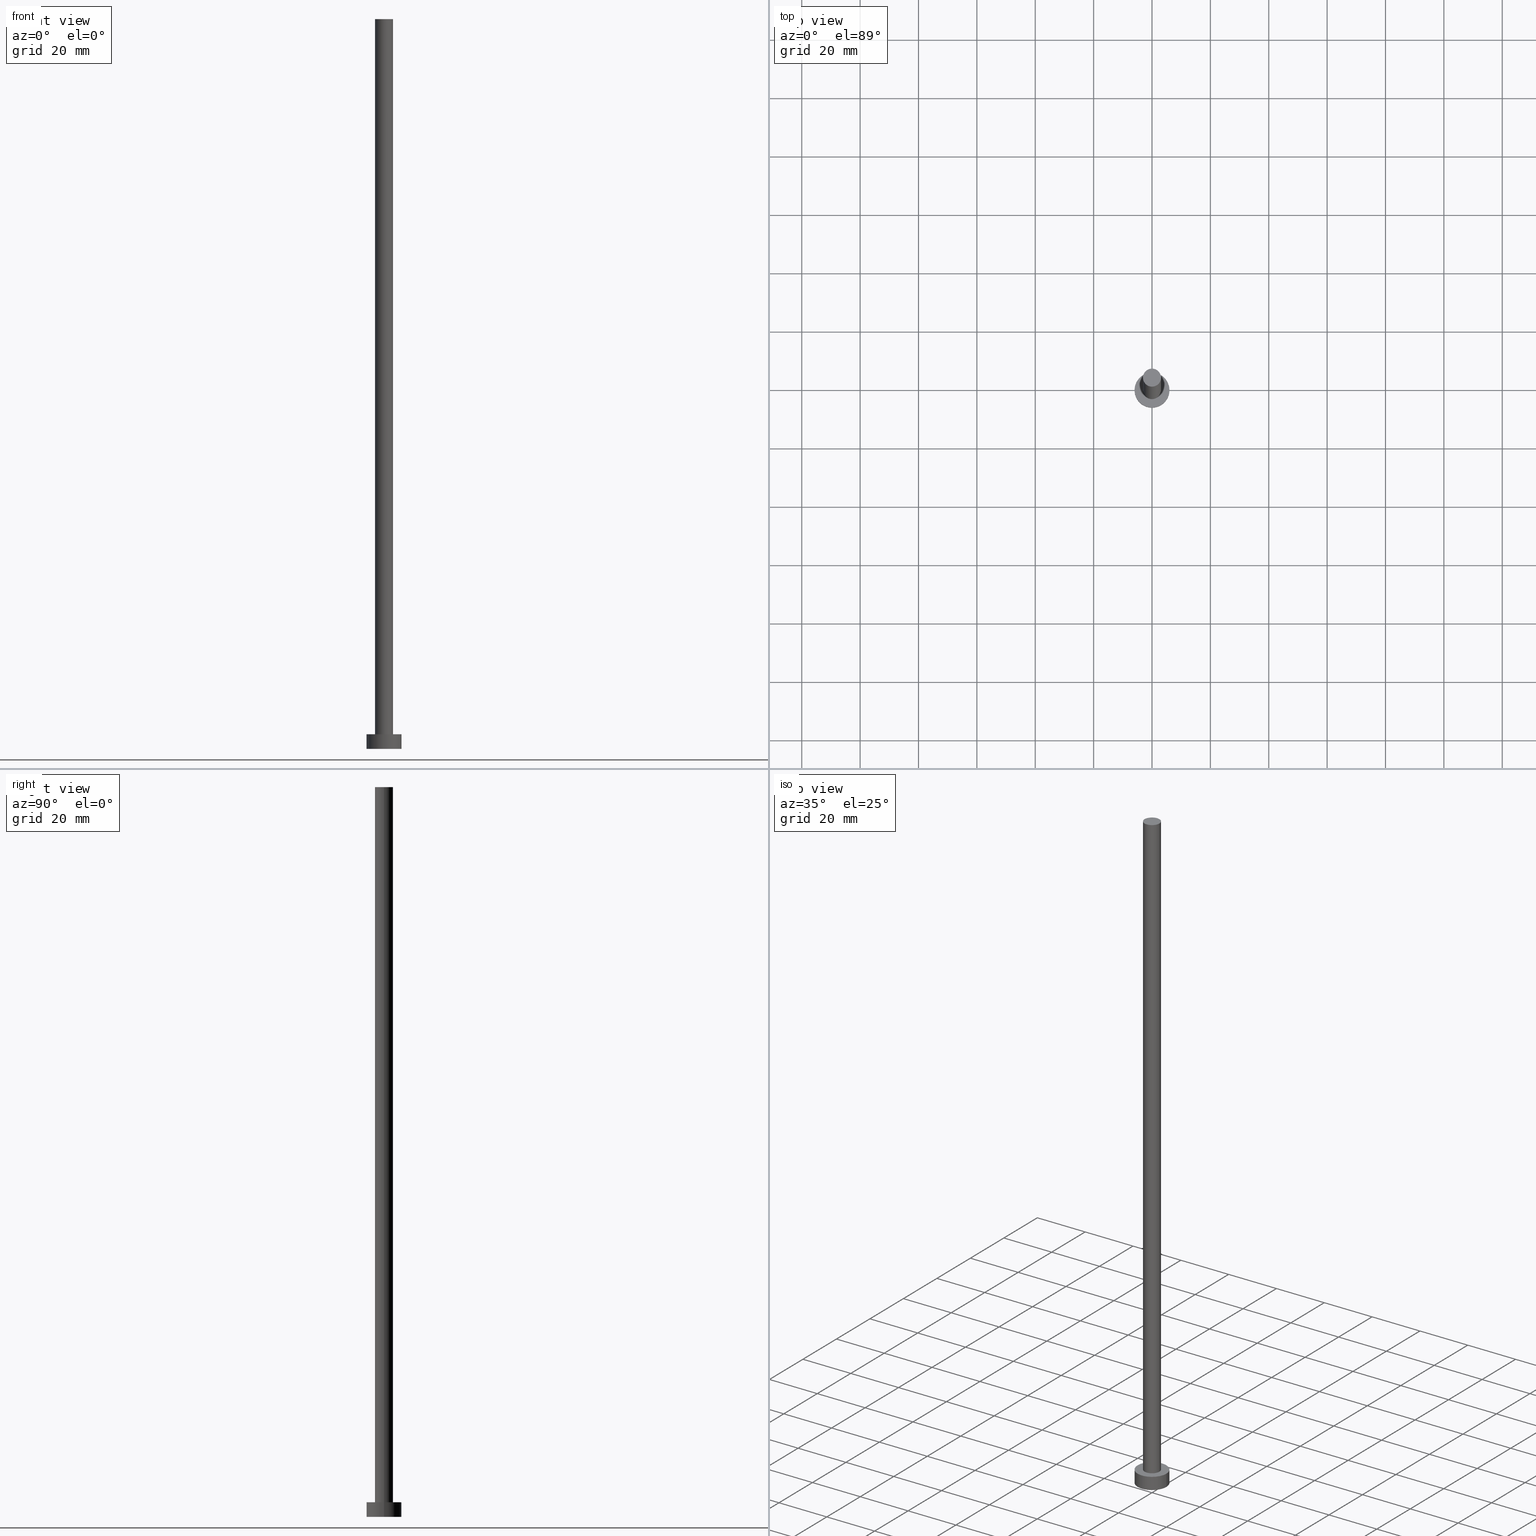
[diagram: canonical four-view strip — front | top / right | iso, engineering-drawing reading convention]
A machine part, canonical four-view strip (front | top / right | iso — engineering-drawing reading convention). The complete STEP part file that produces these views, byte-faithful:
ISO-10303-21;
HEADER;
FILE_DESCRIPTION (( 'STEP AP203' ),
    '1' );
FILE_NAME ('4c30.STEP',
    '2023-02-13T12:35:41',
    ( '' ),
    ( '' ),
    'SwSTEP 2.0',
    'SolidWorks 2019',
    '' );
FILE_SCHEMA (( 'CONFIG_CONTROL_DESIGN' ));
ENDSEC;

DATA;
#1 = FACE_BOUND ( 'NONE', #68, .T. ) ;
#2 = ORIENTED_EDGE ( 'NONE', *, *, #168, .F. ) ;
#3 = DIRECTION ( 'NONE',  ( -1.000000000000000000, 0.000000000000000000, 0.000000000000000000 ) ) ;
#4 = ORIENTED_EDGE ( 'NONE', *, *, #51, .F. ) ;
#5 = EDGE_CURVE ( 'NONE', #189, #237, #184, .T. ) ;
#6 = CARTESIAN_POINT ( 'NONE',  ( 0.000000000000000000, 0.000000000000000000, 5.000000000000000000 ) ) ;
#7 = PERSON_AND_ORGANIZATION_ROLE ( 'design_supplier' ) ;
#8 = PLANE ( 'NONE',  #201 ) ;
#9 = CALENDAR_DATE ( 2023, 13, 2 ) ;
#10 = DIRECTION ( 'NONE',  ( -0.000000000000000000, -0.000000000000000000, -1.000000000000000000 ) ) ;
#11 =( GEOMETRIC_REPRESENTATION_CONTEXT ( 3 ) GLOBAL_UNCERTAINTY_ASSIGNED_CONTEXT ( ( #56 ) ) GLOBAL_UNIT_ASSIGNED_CONTEXT ( ( #32, #148, #248 ) ) REPRESENTATION_CONTEXT ( 'NONE', 'WORKASPACE' ) );
#12 = DIRECTION ( 'NONE',  ( 1.000000000000000000, 0.000000000000000000, -0.000000000000000000 ) ) ;
#13 = AXIS2_PLACEMENT_3D ( 'NONE', #216, #87, #73 ) ;
#14 = EDGE_LOOP ( 'NONE', ( #133, #179 ) ) ;
#15 = DIRECTION ( 'NONE',  ( 1.000000000000000000, 0.000000000000000000, 0.000000000000000000 ) ) ;
#16 = LINE ( 'NONE', #197, #220 ) ;
#17 = VECTOR ( 'NONE', #126, 1000.000000000000000 ) ;
#18 = AXIS2_PLACEMENT_3D ( 'NONE', #141, #84, #217 ) ;
#19 = CARTESIAN_POINT ( 'NONE',  ( 0.000000000000000000, 0.000000000000000000, 0.000000000000000000 ) ) ;
#20 = DIRECTION ( 'NONE',  ( 0.000000000000000000, 0.000000000000000000, 1.000000000000000000 ) ) ;
#21 = CYLINDRICAL_SURFACE ( 'NONE', #255, 6.000000000000000888 ) ;
#22 = ORIENTED_EDGE ( 'NONE', *, *, #176, .T. ) ;
#23 = CARTESIAN_POINT ( 'NONE',  ( -3.100000000000000089, 0.000000000000000000, 5.000000000000000000 ) ) ;
#24 = PERSON_AND_ORGANIZATION ( #138, #109 ) ;
#25 = ADVANCED_FACE ( 'NONE', ( #167 ), #128, .T. ) ;
#26 = DIRECTION ( 'NONE',  ( -0.000000000000000000, -0.000000000000000000, -1.000000000000000000 ) ) ;
#27 = DIRECTION ( 'NONE',  ( 0.000000000000000000, 0.000000000000000000, 1.000000000000000000 ) ) ;
#28 = APPLICATION_CONTEXT ( 'configuration controlled 3d designs of mechanical parts and assemblies' ) ;
#29 = CARTESIAN_POINT ( 'NONE',  ( 3.100000000000000089, 3.796405077356794918E-16, 250.0000000000000000 ) ) ;
#30 = PRODUCT_RELATED_PRODUCT_CATEGORY ( 'detail', '', ( #172 ) ) ;
#31 = CIRCLE ( 'NONE', #59, 6.000000000000000888 ) ;
#32 =( LENGTH_UNIT ( ) NAMED_UNIT ( * ) SI_UNIT ( .MILLI., .METRE. ) );
#33 = CARTESIAN_POINT ( 'NONE',  ( -6.000000000000000888, 0.000000000000000000, 5.000000000000000000 ) ) ;
#34 = ORIENTED_EDGE ( 'NONE', *, *, #50, .T. ) ;
#35 = DIRECTION ( 'NONE',  ( 1.000000000000000000, 0.000000000000000000, 0.000000000000000000 ) ) ;
#36 = EDGE_LOOP ( 'NONE', ( #2, #140, #65, #4 ) ) ;
#37 = DATE_AND_TIME ( #210, #46 ) ;
#38 = CIRCLE ( 'NONE', #180, 3.100000000000000089 ) ;
#39 = APPROVAL_ROLE ( '' ) ;
#40 = APPROVAL_DATE_TIME ( #173, #55 ) ;
#41 = APPLICATION_CONTEXT ( 'configuration controlled 3d designs of mechanical parts and assemblies' ) ;
#42 = ORIENTED_EDGE ( 'NONE', *, *, #146, .F. ) ;
#43 = EDGE_LOOP ( 'NONE', ( #42, #235, #187, #151 ) ) ;
#44 = FACE_OUTER_BOUND ( 'NONE', #116, .T. ) ;
#45 = DIRECTION ( 'NONE',  ( 0.000000000000000000, 0.000000000000000000, 1.000000000000000000 ) ) ;
#46 = LOCAL_TIME ( 13, 35, 41.00000000000000000, #230 ) ;
#47 = PERSON_AND_ORGANIZATION_ROLE ( 'classification_officer' ) ;
#48 = FACE_OUTER_BOUND ( 'NONE', #36, .T. ) ;
#49 = CARTESIAN_POINT ( 'NONE',  ( -3.100000000000000089, 0.000000000000000000, 250.0000000000000000 ) ) ;
#50 = EDGE_CURVE ( 'NONE', #60, #231, #218, .T. ) ;
#51 = EDGE_CURVE ( 'NONE', #99, #189, #164, .T. ) ;
#52 = DIRECTION ( 'NONE',  ( 1.000000000000000000, 0.000000000000000000, 0.000000000000000000 ) ) ;
#53 = CARTESIAN_POINT ( 'NONE',  ( 6.000000000000000888, 7.347880794884120722E-16, 5.000000000000000000 ) ) ;
#54 = APPROVAL_STATUS ( 'not_yet_approved' ) ;
#55 = APPROVAL ( #54, 'NEUR�EN�' ) ;
#56 = UNCERTAINTY_MEASURE_WITH_UNIT (LENGTH_MEASURE( 1.000000000000000082E-05 ), #32, 'distance_accuracy_value', 'NONE');
#57 = CC_DESIGN_APPROVAL ( #125, ( #79 ) ) ;
#58 = APPLICATION_PROTOCOL_DEFINITION ( 'international standard', 'config_control_design', 1994, #41 ) ;
#59 = AXIS2_PLACEMENT_3D ( 'NONE', #222, #27, #147 ) ;
#60 = VERTEX_POINT ( 'NONE', #250 ) ;
#61 = ADVANCED_FACE ( 'NONE', ( #249 ), #224, .T. ) ;
#62 = VECTOR ( 'NONE', #91, 1000.000000000000000 ) ;
#63 = LOCAL_TIME ( 13, 35, 41.00000000000000000, #175 ) ;
#64 = CIRCLE ( 'NONE', #13, 3.100000000000000089 ) ;
#65 = ORIENTED_EDGE ( 'NONE', *, *, #82, .T. ) ;
#66 = APPROVAL_ROLE ( '' ) ;
#67 = DIRECTION ( 'NONE',  ( 1.000000000000000000, 0.000000000000000000, 0.000000000000000000 ) ) ;
#68 = EDGE_LOOP ( 'NONE', ( #94, #137 ) ) ;
#69 = DIRECTION ( 'NONE',  ( 1.000000000000000000, 0.000000000000000000, -0.000000000000000000 ) ) ;
#70 = ORIENTED_EDGE ( 'NONE', *, *, #176, .F. ) ;
#71 = DIRECTION ( 'NONE',  ( 0.000000000000000000, 0.000000000000000000, 1.000000000000000000 ) ) ;
#72 = CIRCLE ( 'NONE', #185, 3.100000000000000089 ) ;
#73 = DIRECTION ( 'NONE',  ( 1.000000000000000000, 0.000000000000000000, 0.000000000000000000 ) ) ;
#74 = CC_DESIGN_PERSON_AND_ORGANIZATION_ASSIGNMENT ( #211, #134, ( #79 ) ) ;
#75 = ORIENTED_EDGE ( 'NONE', *, *, #85, .T. ) ;
#76 = LOCAL_TIME ( 13, 35, 41.00000000000000000, #181 ) ;
#77 = DIRECTION ( 'NONE',  ( 0.000000000000000000, 0.000000000000000000, 1.000000000000000000 ) ) ;
#78 = DIRECTION ( 'NONE',  ( -1.000000000000000000, 0.000000000000000000, 0.000000000000000000 ) ) ;
#79 = PRODUCT_DEFINITION ( 'NEZN�M�', '', #171, #115 ) ;
#80 = MECHANICAL_CONTEXT ( 'NONE', #28, 'mechanical' ) ;
#81 = COORDINATED_UNIVERSAL_TIME_OFFSET ( 1, 0, .AHEAD. ) ;
#82 = EDGE_CURVE ( 'NONE', #237, #189, #38, .T. ) ;
#83 = CC_DESIGN_APPROVAL ( #55, ( #171 ) ) ;
#84 = DIRECTION ( 'NONE',  ( 0.000000000000000000, 0.000000000000000000, 1.000000000000000000 ) ) ;
#85 = EDGE_CURVE ( 'NONE', #160, #103, #108, .T. ) ;
#86 = CARTESIAN_POINT ( 'NONE',  ( 0.000000000000000000, 0.000000000000000000, 5.000000000000000000 ) ) ;
#87 = DIRECTION ( 'NONE',  ( 0.000000000000000000, 0.000000000000000000, 1.000000000000000000 ) ) ;
#88 = CARTESIAN_POINT ( 'NONE',  ( -6.000000000000000888, 0.000000000000000000, 0.000000000000000000 ) ) ;
#89 = DIRECTION ( 'NONE',  ( -1.000000000000000000, 0.000000000000000000, 0.000000000000000000 ) ) ;
#90 = CIRCLE ( 'NONE', #254, 6.000000000000000888 ) ;
#91 = DIRECTION ( 'NONE',  ( -0.000000000000000000, -0.000000000000000000, -1.000000000000000000 ) ) ;
#92 = AXIS2_PLACEMENT_3D ( 'NONE', #19, #20, #96 ) ;
#93 = CARTESIAN_POINT ( 'NONE',  ( 0.000000000000000000, 0.000000000000000000, 250.0000000000000000 ) ) ;
#94 = ORIENTED_EDGE ( 'NONE', *, *, #5, .F. ) ;
#95 = ORIENTED_EDGE ( 'NONE', *, *, #159, .T. ) ;
#96 = DIRECTION ( 'NONE',  ( 1.000000000000000000, 0.000000000000000000, 0.000000000000000000 ) ) ;
#97 = APPROVAL_STATUS ( 'not_yet_approved' ) ;
#98 = CALENDAR_DATE ( 2023, 13, 2 ) ;
#99 = VERTEX_POINT ( 'NONE', #191 ) ;
#100 = DATE_AND_TIME ( #98, #245 ) ;
#101 = CARTESIAN_POINT ( 'NONE',  ( 0.000000000000000000, 0.000000000000000000, 5.000000000000000000 ) ) ;
#102 = PLANE ( 'NONE',  #163 ) ;
#103 = VERTEX_POINT ( 'NONE', #129 ) ;
#104 = DIRECTION ( 'NONE',  ( 0.000000000000000000, 0.000000000000000000, 1.000000000000000000 ) ) ;
#105 = APPROVAL_STATUS ( 'not_yet_approved' ) ;
#106 = CARTESIAN_POINT ( 'NONE',  ( 3.100000000000000089, 3.796405077356794918E-16, 5.000000000000000000 ) ) ;
#107 = ORIENTED_EDGE ( 'NONE', *, *, #223, .T. ) ;
#108 = LINE ( 'NONE', #53, #246 ) ;
#109 = ORGANIZATION ( 'NEUR�EN�', 'NEUR�EN�', '' ) ;
#110 = EDGE_CURVE ( 'NONE', #99, #198, #72, .T. ) ;
#111 = EDGE_LOOP ( 'NONE', ( #118, #212 ) ) ;
#112 = ADVANCED_BREP_SHAPE_REPRESENTATION ( '4c30', ( #196, #92 ), #11 ) ;
#113 = EDGE_LOOP ( 'NONE', ( #95, #22 ) ) ;
#114 = DATE_TIME_ROLE ( 'creation_date' ) ;
#115 = DESIGN_CONTEXT ( 'detailed design', #41, 'design' ) ;
#116 = EDGE_LOOP ( 'NONE', ( #204, #227, #34, #107 ) ) ;
#117 = APPROVAL ( #105, 'NEUR�EN�' ) ;
#118 = ORIENTED_EDGE ( 'NONE', *, *, #223, .F. ) ;
#119 = FACE_OUTER_BOUND ( 'NONE', #120, .T. ) ;
#120 = EDGE_LOOP ( 'NONE', ( #70, #75, #247, #169 ) ) ;
#121 = CC_DESIGN_PERSON_AND_ORGANIZATION_ASSIGNMENT ( #253, #155, ( #171 ) ) ;
#122 = DIRECTION ( 'NONE',  ( 1.000000000000000000, 0.000000000000000000, -0.000000000000000000 ) ) ;
#123 = CARTESIAN_POINT ( 'NONE',  ( 0.000000000000000000, 0.000000000000000000, 5.000000000000000000 ) ) ;
#124 = AXIS2_PLACEMENT_3D ( 'NONE', #101, #199, #3 ) ;
#125 = APPROVAL ( #97, 'NEUR�EN�' ) ;
#126 = DIRECTION ( 'NONE',  ( -0.000000000000000000, -0.000000000000000000, -1.000000000000000000 ) ) ;
#127 = DIRECTION ( 'NONE',  ( -0.000000000000000000, -0.000000000000000000, -1.000000000000000000 ) ) ;
#128 = PLANE ( 'NONE',  #170 ) ;
#129 = CARTESIAN_POINT ( 'NONE',  ( 6.000000000000000888, 7.347880794884120722E-16, 0.000000000000000000 ) ) ;
#130 = APPROVAL_DATE_TIME ( #157, #125 ) ;
#131 = PERSON_AND_ORGANIZATION ( #138, #109 ) ;
#132 = PERSON_AND_ORGANIZATION_ROLE ( 'design_owner' ) ;
#133 = ORIENTED_EDGE ( 'NONE', *, *, #110, .T. ) ;
#134 = PERSON_AND_ORGANIZATION_ROLE ( 'creator' ) ;
#135 = LOCAL_TIME ( 13, 35, 41.00000000000000000, #81 ) ;
#136 = DIRECTION ( 'NONE',  ( 0.000000000000000000, 0.000000000000000000, 1.000000000000000000 ) ) ;
#137 = ORIENTED_EDGE ( 'NONE', *, *, #82, .F. ) ;
#138 = PERSON ( 'NEUR�EN�', 'NEUR�EN�', 'NEUR�EN�', ('NEUR�EN�'), ('NEUR�EN�'), ('NEUR�EN�') ) ;
#139 = APPROVAL_DATE_TIME ( #202, #117 ) ;
#140 = ORIENTED_EDGE ( 'NONE', *, *, #146, .T. ) ;
#141 = CARTESIAN_POINT ( 'NONE',  ( 0.000000000000000000, 0.000000000000000000, 0.000000000000000000 ) ) ;
#142 = PERSON_AND_ORGANIZATION ( #138, #109 ) ;
#143 = CIRCLE ( 'NONE', #18, 6.000000000000000888 ) ;
#144 = CYLINDRICAL_SURFACE ( 'NONE', #226, 3.100000000000000089 ) ;
#145 = AXIS2_PLACEMENT_3D ( 'NONE', #123, #136, #215 ) ;
#146 = EDGE_CURVE ( 'NONE', #198, #237, #16, .T. ) ;
#147 = DIRECTION ( 'NONE',  ( 1.000000000000000000, 0.000000000000000000, 0.000000000000000000 ) ) ;
#148 =( NAMED_UNIT ( * ) PLANE_ANGLE_UNIT ( ) SI_UNIT ( $, .RADIAN. ) );
#149 = AXIS2_PLACEMENT_3D ( 'NONE', #207, #127, #78 ) ;
#150 = CARTESIAN_POINT ( 'NONE',  ( 0.000000000000000000, 0.000000000000000000, 250.0000000000000000 ) ) ;
#151 = ORIENTED_EDGE ( 'NONE', *, *, #5, .T. ) ;
#152 = CC_DESIGN_PERSON_AND_ORGANIZATION_ASSIGNMENT ( #240, #47, ( #219 ) ) ;
#153 = DIRECTION ( 'NONE',  ( -0.000000000000000000, -0.000000000000000000, -1.000000000000000000 ) ) ;
#154 = CLOSED_SHELL ( 'NONE', ( #243, #166, #188, #195, #213, #61, #25 ) ) ;
#155 = PERSON_AND_ORGANIZATION_ROLE ( 'creator' ) ;
#156 = PRODUCT_DEFINITION_SHAPE ( 'NONE', 'NONE',  #79 ) ;
#157 = DATE_AND_TIME ( #232, #135 ) ;
#158 = APPROVAL_PERSON_ORGANIZATION ( #229, #125, #174 ) ;
#159 = EDGE_CURVE ( 'NONE', #60, #160, #31, .T. ) ;
#160 = VERTEX_POINT ( 'NONE', #203 ) ;
#161 = DIRECTION ( 'NONE',  ( -1.000000000000000000, 0.000000000000000000, 0.000000000000000000 ) ) ;
#162 = FACE_OUTER_BOUND ( 'NONE', #113, .T. ) ;
#163 = AXIS2_PLACEMENT_3D ( 'NONE', #86, #45, #122 ) ;
#164 = LINE ( 'NONE', #49, #17 ) ;
#165 = APPLICATION_PROTOCOL_DEFINITION ( 'international standard', 'config_control_design', 1994, #28 ) ;
#166 = ADVANCED_FACE ( 'NONE', ( #119 ), #21, .T. ) ;
#167 = FACE_OUTER_BOUND ( 'NONE', #14, .T. ) ;
#168 = EDGE_CURVE ( 'NONE', #198, #99, #64, .T. ) ;
#169 = ORIENTED_EDGE ( 'NONE', *, *, #50, .F. ) ;
#170 = AXIS2_PLACEMENT_3D ( 'NONE', #150, #193, #12 ) ;
#171 = PRODUCT_DEFINITION_FORMATION_WITH_SPECIFIED_SOURCE ( 'LIBOVOLN�', '', #172, .NOT_KNOWN. ) ;
#172 = PRODUCT ( '4c30', '4c30', '', ( #80 ) ) ;
#173 = DATE_AND_TIME ( #194, #63 ) ;
#174 = APPROVAL_ROLE ( '' ) ;
#175 = COORDINATED_UNIVERSAL_TIME_OFFSET ( 1, 0, .AHEAD. ) ;
#176 = EDGE_CURVE ( 'NONE', #160, #60, #234, .T. ) ;
#177 = DATE_TIME_ROLE ( 'classification_date' ) ;
#178 = DIRECTION ( 'NONE',  ( -0.000000000000000000, -0.000000000000000000, -1.000000000000000000 ) ) ;
#179 = ORIENTED_EDGE ( 'NONE', *, *, #168, .T. ) ;
#180 = AXIS2_PLACEMENT_3D ( 'NONE', #208, #192, #15 ) ;
#181 = COORDINATED_UNIVERSAL_TIME_OFFSET ( 1, 0, .AHEAD. ) ;
#182 = FACE_OUTER_BOUND ( 'NONE', #111, .T. ) ;
#183 = COORDINATED_UNIVERSAL_TIME_OFFSET ( 1, 0, .AHEAD. ) ;
#184 = CIRCLE ( 'NONE', #214, 3.100000000000000089 ) ;
#185 = AXIS2_PLACEMENT_3D ( 'NONE', #93, #209, #35 ) ;
#186 = CC_DESIGN_DATE_AND_TIME_ASSIGNMENT ( #37, #114, ( #79 ) ) ;
#187 = ORIENTED_EDGE ( 'NONE', *, *, #51, .T. ) ;
#188 = ADVANCED_FACE ( 'NONE', ( #44 ), #241, .T. ) ;
#189 = VERTEX_POINT ( 'NONE', #23 ) ;
#190 = APPROVAL_PERSON_ORGANIZATION ( #131, #55, #39 ) ;
#191 = CARTESIAN_POINT ( 'NONE',  ( -3.100000000000000089, 0.000000000000000000, 250.0000000000000000 ) ) ;
#192 = DIRECTION ( 'NONE',  ( 0.000000000000000000, 0.000000000000000000, 1.000000000000000000 ) ) ;
#193 = DIRECTION ( 'NONE',  ( 0.000000000000000000, 0.000000000000000000, 1.000000000000000000 ) ) ;
#194 = CALENDAR_DATE ( 2023, 13, 2 ) ;
#195 = ADVANCED_FACE ( 'NONE', ( #1, #162 ), #102, .T. ) ;
#196 = MANIFOLD_SOLID_BREP ( 'P�idat vysunut�m3', #154 ) ;
#197 = CARTESIAN_POINT ( 'NONE',  ( 3.100000000000000089, 3.796405077356794918E-16, 250.0000000000000000 ) ) ;
#198 = VERTEX_POINT ( 'NONE', #29 ) ;
#199 = DIRECTION ( 'NONE',  ( -0.000000000000000000, -0.000000000000000000, -1.000000000000000000 ) ) ;
#200 = CC_DESIGN_APPROVAL ( #117, ( #219 ) ) ;
#201 = AXIS2_PLACEMENT_3D ( 'NONE', #239, #71, #69 ) ;
#202 = DATE_AND_TIME ( #9, #76 ) ;
#203 = CARTESIAN_POINT ( 'NONE',  ( 6.000000000000000888, 7.347880794884120722E-16, 5.000000000000000000 ) ) ;
#204 = ORIENTED_EDGE ( 'NONE', *, *, #85, .F. ) ;
#205 = EDGE_CURVE ( 'NONE', #103, #231, #90, .T. ) ;
#206 = CC_DESIGN_SECURITY_CLASSIFICATION ( #219, ( #171 ) ) ;
#207 = CARTESIAN_POINT ( 'NONE',  ( 0.000000000000000000, 0.000000000000000000, 250.0000000000000000 ) ) ;
#208 = CARTESIAN_POINT ( 'NONE',  ( 0.000000000000000000, 0.000000000000000000, 5.000000000000000000 ) ) ;
#209 = DIRECTION ( 'NONE',  ( 0.000000000000000000, 0.000000000000000000, 1.000000000000000000 ) ) ;
#210 = CALENDAR_DATE ( 2023, 13, 2 ) ;
#211 = PERSON_AND_ORGANIZATION ( #138, #109 ) ;
#212 = ORIENTED_EDGE ( 'NONE', *, *, #205, .F. ) ;
#213 = ADVANCED_FACE ( 'NONE', ( #182 ), #8, .F. ) ;
#214 = AXIS2_PLACEMENT_3D ( 'NONE', #225, #77, #52 ) ;
#215 = DIRECTION ( 'NONE',  ( 1.000000000000000000, 0.000000000000000000, 0.000000000000000000 ) ) ;
#216 = CARTESIAN_POINT ( 'NONE',  ( 0.000000000000000000, 0.000000000000000000, 250.0000000000000000 ) ) ;
#217 = DIRECTION ( 'NONE',  ( 1.000000000000000000, 0.000000000000000000, 0.000000000000000000 ) ) ;
#218 = LINE ( 'NONE', #33, #62 ) ;
#219 = SECURITY_CLASSIFICATION ( '', '', #238 ) ;
#220 = VECTOR ( 'NONE', #26, 1000.000000000000000 ) ;
#221 = CARTESIAN_POINT ( 'NONE',  ( 0.000000000000000000, 0.000000000000000000, 250.0000000000000000 ) ) ;
#222 = CARTESIAN_POINT ( 'NONE',  ( 0.000000000000000000, 0.000000000000000000, 5.000000000000000000 ) ) ;
#223 = EDGE_CURVE ( 'NONE', #231, #103, #143, .T. ) ;
#224 = CYLINDRICAL_SURFACE ( 'NONE', #149, 3.100000000000000089 ) ;
#225 = CARTESIAN_POINT ( 'NONE',  ( 0.000000000000000000, 0.000000000000000000, 5.000000000000000000 ) ) ;
#226 = AXIS2_PLACEMENT_3D ( 'NONE', #221, #10, #89 ) ;
#227 = ORIENTED_EDGE ( 'NONE', *, *, #159, .F. ) ;
#228 = PERSON_AND_ORGANIZATION ( #138, #109 ) ;
#229 = PERSON_AND_ORGANIZATION ( #138, #109 ) ;
#230 = COORDINATED_UNIVERSAL_TIME_OFFSET ( 1, 0, .AHEAD. ) ;
#231 = VERTEX_POINT ( 'NONE', #88 ) ;
#232 = CALENDAR_DATE ( 2023, 13, 2 ) ;
#233 = SHAPE_DEFINITION_REPRESENTATION ( #156, #112 ) ;
#234 = CIRCLE ( 'NONE', #145, 6.000000000000000888 ) ;
#235 = ORIENTED_EDGE ( 'NONE', *, *, #110, .F. ) ;
#236 = CARTESIAN_POINT ( 'NONE',  ( 0.000000000000000000, 0.000000000000000000, 0.000000000000000000 ) ) ;
#237 = VERTEX_POINT ( 'NONE', #106 ) ;
#238 = SECURITY_CLASSIFICATION_LEVEL ( 'unclassified' ) ;
#239 = CARTESIAN_POINT ( 'NONE',  ( 0.000000000000000000, 0.000000000000000000, 0.000000000000000000 ) ) ;
#240 = PERSON_AND_ORGANIZATION ( #138, #109 ) ;
#241 = CYLINDRICAL_SURFACE ( 'NONE', #124, 6.000000000000000888 ) ;
#242 = APPROVAL_PERSON_ORGANIZATION ( #142, #117, #66 ) ;
#243 = ADVANCED_FACE ( 'NONE', ( #48 ), #144, .T. ) ;
#244 = CC_DESIGN_DATE_AND_TIME_ASSIGNMENT ( #100, #177, ( #219 ) ) ;
#245 = LOCAL_TIME ( 13, 35, 41.00000000000000000, #183 ) ;
#246 = VECTOR ( 'NONE', #153, 1000.000000000000000 ) ;
#247 = ORIENTED_EDGE ( 'NONE', *, *, #205, .T. ) ;
#248 =( NAMED_UNIT ( * ) SI_UNIT ( $, .STERADIAN. ) SOLID_ANGLE_UNIT ( ) );
#249 = FACE_OUTER_BOUND ( 'NONE', #43, .T. ) ;
#250 = CARTESIAN_POINT ( 'NONE',  ( -6.000000000000000888, 0.000000000000000000, 5.000000000000000000 ) ) ;
#251 = CC_DESIGN_PERSON_AND_ORGANIZATION_ASSIGNMENT ( #24, #7, ( #171 ) ) ;
#252 = CC_DESIGN_PERSON_AND_ORGANIZATION_ASSIGNMENT ( #228, #132, ( #172 ) ) ;
#253 = PERSON_AND_ORGANIZATION ( #138, #109 ) ;
#254 = AXIS2_PLACEMENT_3D ( 'NONE', #236, #104, #67 ) ;
#255 = AXIS2_PLACEMENT_3D ( 'NONE', #6, #178, #161 ) ;
ENDSEC;
END-ISO-10303-21;
